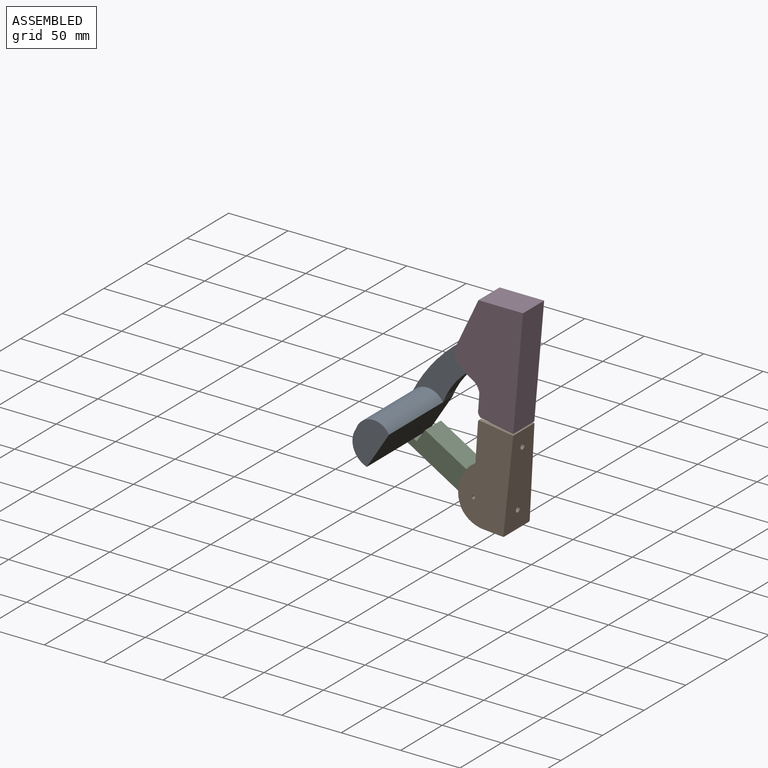
[diagram: assembled view]
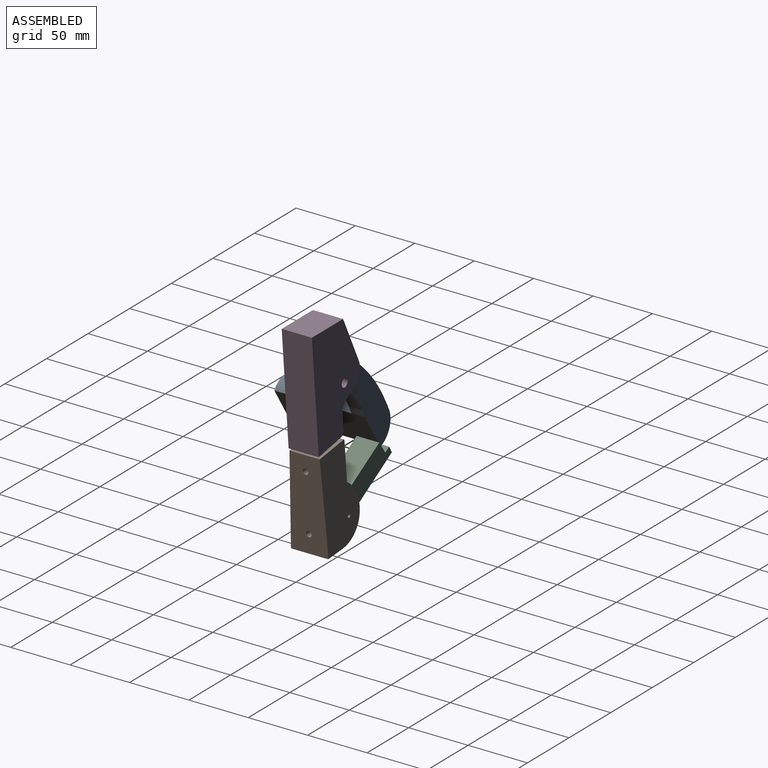
[diagram: assembled view, second angle]
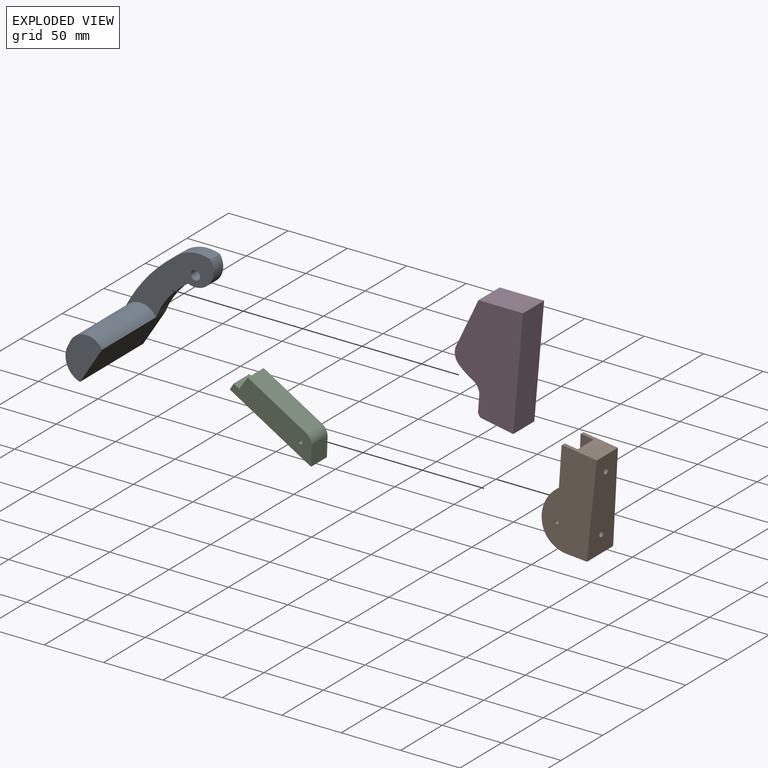
[diagram: exploded view]
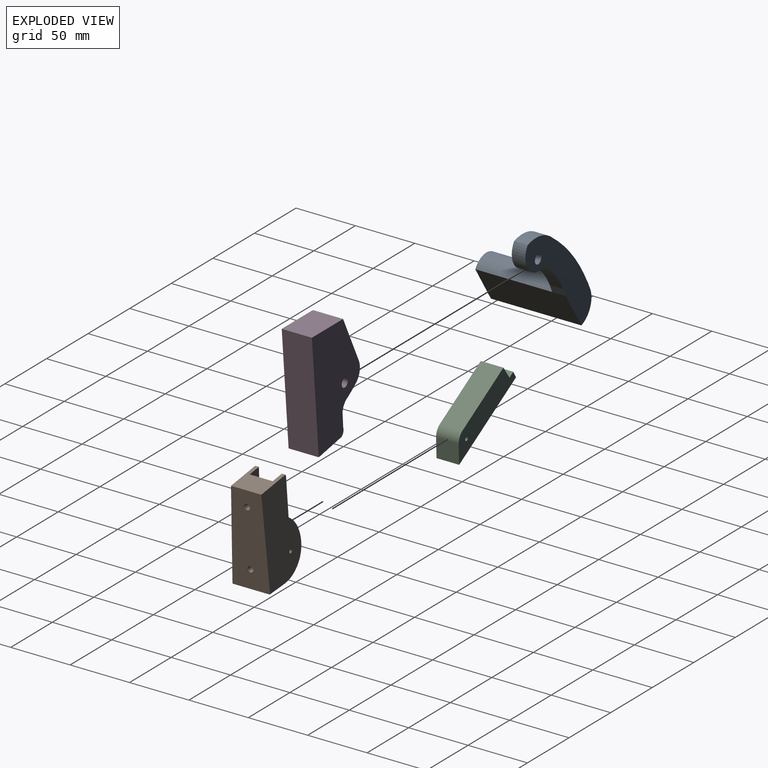
[diagram: exploded view, second angle]
ASSEMBLY  parts=4 mates=2
PART A: 11 faces, bbox 94.4x76.2x69.9 mm
  f0: cylinder r=15.31mm len=76.2mm, axis (0,1,0), area 2331.7mm2, adj f1,f2,f3,f4,f8,f10
  f1: cylinder r=17.72mm len=76.2mm, axis (0,1,0), area 2481.4mm2, adj f0,f2,f3,f4
  f2: plane 76.2x26.25mm, normal (0.66,0,-0.75), area 2663.3mm2, adj f0,f1,f3,f4,f5
  f3: plane 34.79x33.86mm, normal (0,-1,0), area 703.7mm2, adj f0,f1,f2
  f4: plane 94.43x69.89mm, normal (0,1,0), area 2303.9mm2, adj f0,f1,f2,f5,f6,f7,f8,f9
  f5: cylinder r=70.37mm len=35.1mm, axis (0,1,0), area 493.9mm2, adj f2,f4,f6,f10
  f6: cylinder r=15.64mm len=25.48mm, axis (0,1,0), area 460.3mm2, adj f4,f5,f7,f10
  f7: cylinder r=30.19mm len=30.36mm, axis (0,1,0), area 365.2mm2, adj f4,f6,f8,f10
  f8: cylinder r=140.44mm len=54.11mm, axis (0,1,0), area 748.3mm2, adj f0,f4,f7,f10
  f9: cylinder r=3.89mm len=11.43mm, axis (0,1,0), area 279mm2, adj f4,f10
  f10: plane 85.27x46.8mm, normal (0,-1,0), area 1600.2mm2, adj f0,f5,f6,f7,f8,f9
PART B: 41 faces, bbox 44.8x31.8x81.8 mm
  f0: cylinder r=2.41mm len=6.57mm, axis (-1,0,0.07), area 94.5mm2, adj f7,f36
  f1: cylinder r=2.41mm len=7.25mm, axis (-1,0,0.07), area 104.8mm2, adj f7,f34
  f2: cone r=22.35mm half-angle=45deg, axis (0,1,0), area 0mm2, adj f5,f10
  f3: plane 77.71x26.14mm, normal (0,-1,0), area 1167.6mm2, adj f9,f11,f12,f20,f21,f22,f40
  f4: cylinder r=29.15mm len=25.86mm, axis (0,1,0), area 135mm2, adj f5,f8,f21,f32
  f5: cylinder r=22.86mm len=21.69mm, axis (0,1,0), area 174.1mm2, adj f2,f4,f6,f22,f24,f32
  f6: plane 30.99x17.55mm, normal (-0.08,0,-1), area 545.5mm2, adj f5,f7,f10,f16,f23,f31
  f7: plane 77.65x31.71mm, normal (1,0,-0.08), area 2191.8mm2, adj f0,f1,f6,f23,f31,f32,f33,f40
  f8: plane 31.47x3.89mm, normal (-1,0,0.04), area 102.7mm2, adj f4,f20,f32,f39
  f9: cylinder r=1.5mm len=5.49mm, axis (0,-1,0), area 51.2mm2, adj f3,f32
  f10: cylinder r=22.75mm len=19.81mm, axis (0,1,0), area 191.9mm2, adj f2,f6,f12,f13
  f11: plane 74.02x19.3mm, normal (-1,0,0.07), area 1293.4mm2, adj f3,f12,f14,f35,f37,f40
  f12: cylinder r=15.92mm len=20.32mm, axis (0,1,0), area 199.7mm2, adj f3,f10,f11,f14,f16,f22,f28
  f13: plane 9.2x2.78mm, normal (0,-1,0), area 0.1mm2, adj f10,f16
  f14: plane 77.71x26.15mm, normal (0,1,0), area 1168.5mm2, adj f11,f12,f19,f25,f26,f27,f28,f40
  f15: cylinder r=24.86mm len=18.15mm, axis (0,1,0), area 98.3mm2, adj f16,f18,f27,f29,f33
  f16: cylinder r=23.8mm len=16.23mm, axis (0,1,0), area 105.4mm2, adj f6,f12,f13,f15,f28,f30
  f17: plane 31.47x3.89mm, normal (-1,0,0.04), area 102.7mm2, adj f18,f25,f33,f38
  f18: cylinder r=28.99mm len=20.84mm, axis (0,1,0), area 110.6mm2, adj f15,f17,f26,f33
  f19: cylinder r=1.5mm len=5.49mm, axis (0,1,0), area 51.1mm2, adj f14,f33
  f20: plane 33.1x1.88mm, normal (-0.71,-0.71,0.03), area 23.4mm2, adj f3,f8,f21,f39,f40
  f21: cone r=28.64mm half-angle=45deg, axis (0,1,0), area 22mm2, adj f3,f4,f20,f22
  f22: cone r=22.35mm half-angle=45deg, axis (0,1,0), area 17mm2, adj f3,f5,f12,f21
  f23: plane 17.58x1.8mm, normal (-0.06,0.71,-0.7), area 9.2mm2, adj f6,f7,f24,f32
  f24: cone r=22.86mm half-angle=45deg, axis (0,-1,0), area 8.6mm2, adj f5,f23,f32
  f25: plane 33.11x1.87mm, normal (-0.71,0.71,0.03), area 23.4mm2, adj f14,f17,f26,f38,f40
  f26: cone r=28.99mm half-angle=45deg, axis (0,-1,0), area 18.4mm2, adj f14,f18,f25,f27
  f27: cone r=24.86mm half-angle=45deg, axis (0,-1,0), area 13.6mm2, adj f14,f15,f26,f28
  f28: cone r=23.8mm half-angle=45deg, axis (0,-1,0), area 6.9mm2, adj f12,f14,f16,f27
  f29: cone r=24.35mm half-angle=45deg, axis (0,1,0), area 0.5mm2, adj f15,f30,f33
  f30: cone r=23.29mm half-angle=45deg, axis (0,1,0), area 8.2mm2, adj f16,f29,f31,f33
  f31: plane 17.58x1.8mm, normal (-0.06,-0.71,-0.7), area 9.2mm2, adj f6,f7,f30,f33
  f32: plane 81.44x44.81mm, normal (0.01,1,0.04), area 2614.1mm2, adj f4,f5,f7,f8,f9,f23,f24,f39
  f33: plane 81.44x44.82mm, normal (0.01,-1,0.04), area 2614.9mm2, adj f7,f15,f17,f18,f19,f29,f30,f31
  f34: plane 9.4x9.38mm, normal (-1,0,0.07), area 51.1mm2, adj f1,f35
  f35: cylinder r=4.7mm len=11.77mm, axis (-1,0,0.07), area 330mm2, adj f11,f34
  f36: plane 9.4x9.38mm, normal (-1,0,0.07), area 51.1mm2, adj f0,f37
  f37: cylinder r=4.7mm len=11.77mm, axis (-1,0,0.07), area 330mm2, adj f11,f36
  f38: cylinder r=2.12mm len=3.13mm, axis (0,1,0), area 4.1mm2, adj f17,f25,f33,f40
  f39: cylinder r=2.12mm len=3.13mm, axis (0,-1,0), area 4.1mm2, adj f8,f20,f32,f40
  f40: plane 29.12x25.5mm, normal (0.14,0,0.99), area 535.5mm2, adj f3,f7,f11,f14,f20,f25,f32,f33
PART C: 23 faces, bbox 68.8x54x19.1 mm
  f0: plane 19.05x13.73mm, normal (-0.51,-0.86,0), area 283.6mm2, adj f6,f7,f10,f11,f12,f13,f15,f18
  f1: cylinder r=1.59mm len=4mm, axis (0,0,-1), area 39.9mm2, adj f11,f15
  f2: plane 48.93x29.53mm, normal (0.52,0.86,0), area 1088.7mm2, adj f3,f9,f10,f11
  f3: plane 19.05x10.41mm, normal (-0.82,0.58,0), area 243.2mm2, adj f2,f4,f10,f11
  f4: plane 19.05x4.61mm, normal (0.52,0.85,0), area 102.9mm2, adj f3,f5,f10,f11
  f5: plane 19.05x5.44mm, normal (-0.86,0.52,0), area 121mm2, adj f4,f6,f10,f11
  f6: plane 54.37x32.81mm, normal (-0.52,-0.86,0), area 1188.5mm2, adj f0,f5,f10,f11,f13,f14,f15,f19
  f7: plane 19.05x15.96mm, normal (1,-0.04,0), area 304.4mm2, adj f0,f9,f10,f11
  f8: cylinder r=1.59mm len=4mm, axis (0,0,-1), area 39.9mm2, adj f10,f19
  f9: cylinder r=9.53mm len=19.05mm, axis (0,0,-1), area 193mm2, adj f2,f7,f10,f11
  f10: plane 68.76x54.02mm, normal (0,0,1), area 1326.9mm2, adj f0,f2,f3,f4,f5,f6,f7,f8
  f11: plane 68.76x54.02mm, normal (0,0,-1), area 1326.9mm2, adj f0,f1,f2,f3,f4,f5,f6,f7
  f12: plane 10.54x6.28mm, normal (-0.86,0.51,0), area 47.2mm2, adj f0,f13,f15,f16
  f13: plane 13.33x10.95mm, normal (0,0,-1), area 58.9mm2, adj f0,f6,f12,f14,f16,f17
  f14: plane 10.53x6.27mm, normal (0.86,-0.51,0), area 47.2mm2, adj f6,f13,f15,f16
  f15: plane 13.33x10.95mm, normal (0,0,1), area 58.9mm2, adj f0,f1,f6,f12,f14,f16
  f16: plane 4.68x3.85mm, normal (-0.51,-0.86,0), area 21mm2, adj f12,f13,f14,f15
  f17: cylinder r=1.59mm len=3.35mm, axis (0,0,-1), area 33.4mm2, adj f13,f21
  f18: plane 10.54x6.28mm, normal (-0.86,0.51,0), area 47.2mm2, adj f0,f19,f21,f22
  f19: plane 13.33x10.95mm, normal (0,0,-1), area 58.9mm2, adj f0,f6,f8,f18,f20,f22
  f20: plane 10.53x6.27mm, normal (0.86,-0.51,0), area 47.2mm2, adj f6,f19,f21,f22
  f21: plane 13.33x10.95mm, normal (0,0,1), area 58.9mm2, adj f0,f6,f17,f18,f20,f22
  f22: plane 4.68x3.85mm, normal (-0.51,-0.86,0), area 21mm2, adj f18,f19,f20,f21
PART D: 25 faces, bbox 57.7x25.4x94.1 mm
  f0: plane 25.57x12.44mm, normal (0,-1,0), area 4.4mm2, adj f4,f15,f18
  f1: plane 63.53x49.03mm, normal (0,-1,0), area 1712mm2, adj f4,f5,f6,f7,f8,f9,f12,f13
  f2: plane 94.12x25.4mm, normal (1,0,-0.09), area 2399.7mm2, adj f3,f10,f11,f24
  f3: plane 37.5x25.4mm, normal (0,0,1), area 952.5mm2, adj f2,f4,f11,f18,f24
  f4: plane 38.82x19.05mm, normal (-0.9,0,0.44), area 635.1mm2, adj f0,f1,f3,f5,f11,f15
  f5: cylinder r=13.2mm len=14.95mm, axis (0,1,0), area 102.4mm2, adj f1,f4,f6,f11
  f6: cylinder r=98.42mm len=12.9mm, axis (0,1,0), area 100.6mm2, adj f1,f5,f7,f11
  f7: cylinder r=11.99mm len=7.42mm, axis (0,1,0), area 55.7mm2, adj f1,f6,f8,f11
  f8: plane 12.34x6.35mm, normal (-1,0,0.07), area 78.5mm2, adj f1,f7,f9,f11
  f9: cylinder r=5.32mm len=6.39mm, axis (0,1,0), area 46mm2, adj f1,f8,f10,f11
  f10: plane 27.39x25.4mm, normal (-0.18,0,-0.98), area 707.3mm2, adj f2,f9,f11,f14,f23,f24
  f11: plane 94.12x57.73mm, normal (0,1,0), area 3774.8mm2, adj f2,f3,f4,f5,f6,f7,f8,f9
  f12: plane 39.67x12.7mm, normal (-1,0,0.09), area 505.8mm2, adj f1,f13,f15,f17
  f13: plane 19.19x12.7mm, normal (0.09,0,1), area 244.7mm2, adj f1,f12,f14,f17
  f14: plane 23.29x12.7mm, normal (-0.98,0,0.18), area 300.7mm2, adj f1,f10,f13,f17
  f15: plane 41.24x12.7mm, normal (-0.05,0,-1), area 524.5mm2, adj f0,f1,f4,f12,f17
  f16: cylinder r=3.67mm len=7.34mm, axis (0,-1,0), area 146.3mm2, adj f1,f11
  f17: plane 63.51x48.78mm, normal (0,1,0), area 1744.5mm2, adj f12,f13,f14,f15,f18,f19,f20,f21
  f18: plane 39.41x18.65mm, normal (-0.9,0,0.43), area 276.9mm2, adj f0,f3,f17,f19,f24
  f19: cylinder r=12.29mm len=14.24mm, axis (0,1,0), area 97.9mm2, adj f17,f18,f20,f24
  f20: cylinder r=62.22mm len=12.72mm, axis (0,1,0), area 100.4mm2, adj f17,f19,f21,f24
  f21: cylinder r=12.04mm len=7.37mm, axis (0,1,0), area 55.6mm2, adj f17,f20,f22,f24
  f22: plane 12.5x6.35mm, normal (-1,0,0.07), area 79.5mm2, adj f17,f21,f23,f24
  f23: cylinder r=5.53mm len=6.35mm, axis (0,1,0), area 44.6mm2, adj f10,f17,f22,f24
  f24: plane 94.12x57.48mm, normal (0,-1,0), area 3803mm2, adj f2,f3,f10,f18,f19,f20,f21,f22
PLACE A rot(axis=(0,-1,0),16.2deg) t=(42.08,-8.66,49.95)mm
PLACE B t=(17.02,77.75,90.47)mm fixed
PLACE C rot(axis=(1,0,0),90deg) t=(16.55,-5.05,-55.21)mm
PLACE D rot(axis=(-0.45,0.86,-0.26),0deg) t=(52.14,-2.31,35.58)mm fixed
MATE revolute A.f9 <-> D.f16  axis (0,1,0) through (37.9,-8.66,36.9)mm
MATE revolute C.f1 <-> B.f9  axis (0,-1,0) through (36.8,-24.1,-64.08)mm
